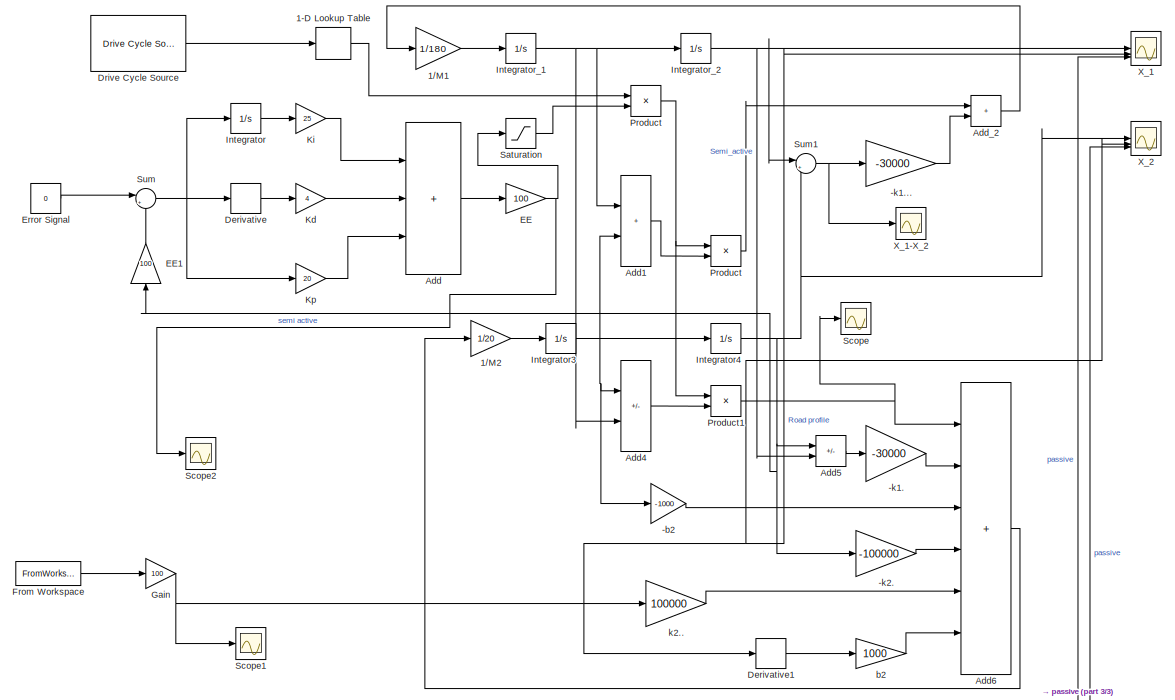
[diagram: root canvas - part 1/3, top center region]
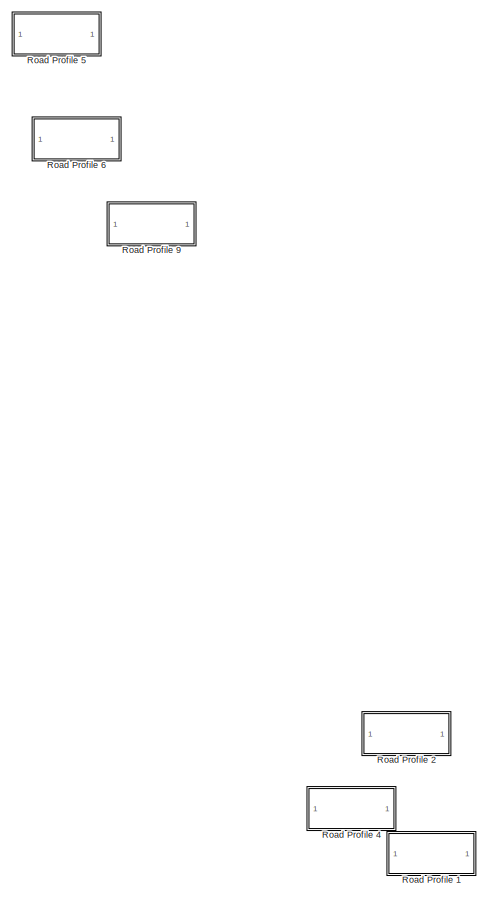
[diagram: root canvas - part 2/3, bottom left region]
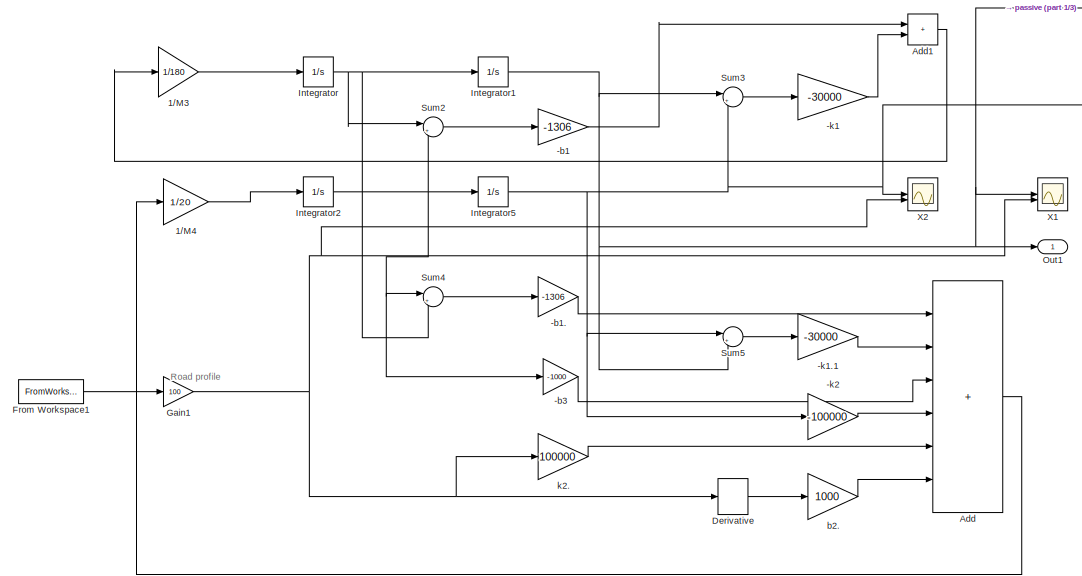
[diagram: root canvas - part 3/3, bottom center region]
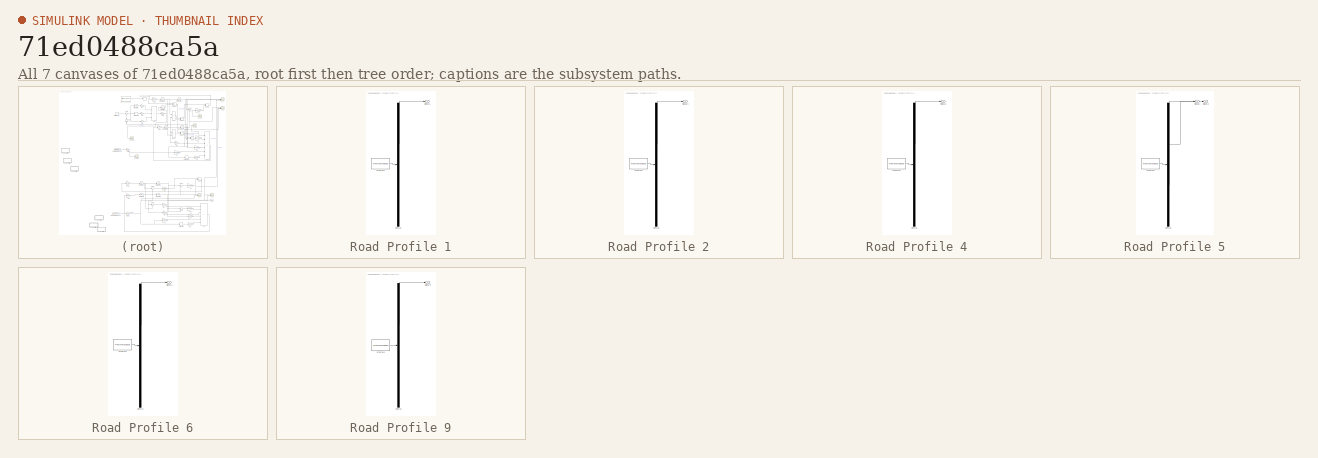
[diagram: thumbnail index - all 7 canvases of the model, root first then tree order]
MODEL slx_71ed0488ca5a
KIND model
CONFIG AbsTol = auto
CONFIG EnableMultiTasking = off
CONFIG FixedStep = auto
CONFIG MaxStep = auto
CONFIG MinStep = auto
CONFIG RelTol = 1e-3
CONFIG SampleTimeConstraint = Unconstrained
CONFIG SolverName = VariableStepAuto
CONFIG StartTime = 0
CONFIG StopTime = 1372
BLOCK [Gain] -b1
  Gain = -1306
BLOCK [Gain] -b1.
  Gain = -1306
BLOCK [Gain] -b2
  Gain = -1000
BLOCK [Gain] -b3
  Gain = -1000
BLOCK [Gain] -k1
  Gain = -30000
BLOCK [Gain] -k1.
  Gain = -30000
BLOCK [Gain] -k1...
  Gain = -30000
BLOCK [Gain] -k1.1
  Gain = -30000
BLOCK [Gain] -k2
  Gain = -100000
BLOCK [Gain] -k2.
  Gain = -100000
BLOCK [Lookup_n-D] 1-D Lookup Table
  BreakpointsForDimension1 = [0 5.5 11.2 16.6 22.2]
  InputPortMap = u0
  InternalRulePriority = Speed
  NumberOfTableDimensions = 1
  RndMeth = Simplest
  Table = [900 1100 1306 1550 1700]
BLOCK [Gain] 1//M1
  Gain = 1/180
BLOCK [Gain] 1//M2
  Gain = 1/20
BLOCK [Gain] 1//M3
  Gain = 1/180
BLOCK [Gain] 1//M4
  Gain = 1/20
BLOCK [Sum] Add
  IconShape = rectangular
  Inputs = ++++++
BLOCK [Sum] Add 
  IconShape = rectangular
  Inputs = +++
BLOCK [Sum] Add1
  IconShape = rectangular
BLOCK [Sum] Add1 
  IconShape = rectangular
BLOCK [Sum] Add4 
  IconShape = rectangular
  Inputs = +-
BLOCK [Sum] Add5
  IconShape = rectangular
  Inputs = +-
BLOCK [Sum] Add6
  IconShape = rectangular
  Inputs = ++++++
BLOCK [Sum] Add_2
  IconShape = rectangular
BLOCK [Derivative] Derivative
BLOCK [Derivative] Derivative 
BLOCK [Derivative] Derivative1
BLOCK [Reference] Drive Cycle Source  REF=autolibshared/Drive Cycle Source
  AttributesFormatString = %<cycleVar> (%<tfinal>)
  LibrarySourceBlock = autolibscenario/Drive Cycle Source
  SourceBlock = autolibshared/Drive Cycle Source
  SourceType = Drive Cycle Source
BLOCK [Gain] EE
  Gain = 100
BLOCK [Gain] EE1
  Gain = 100
  NameLocation = right
BLOCK [Constant] Error Signal
  Value = 0
BLOCK [FromWorkspace] From Workspace
  SampleTime = 0.1
  VariableName = road_profile
BLOCK [FromWorkspace] From Workspace1
  SampleTime = 0.1
  VariableName = road_profile
BLOCK [Gain] Gain
  Gain = 100
BLOCK [Gain] Gain1
  Gain = 100
BLOCK [Integrator] Integrator
BLOCK [Integrator] Integrator 
BLOCK [Integrator] Integrator1
BLOCK [Integrator] Integrator2
BLOCK [Integrator] Integrator3
BLOCK [Integrator] Integrator4
BLOCK [Integrator] Integrator5
BLOCK [Integrator] Integrator_1 
BLOCK [Integrator] Integrator_2 
BLOCK [Gain] Kd
  Gain = 4
BLOCK [Gain] Ki
  Gain = 25
BLOCK [Gain] Kp
  Gain = 20
BLOCK [Outport] Out1
  VectorParamsAs1DForOutWhenUnconnected = off
BLOCK [Product] Product
BLOCK [Product] Product 
BLOCK [Product] Product1
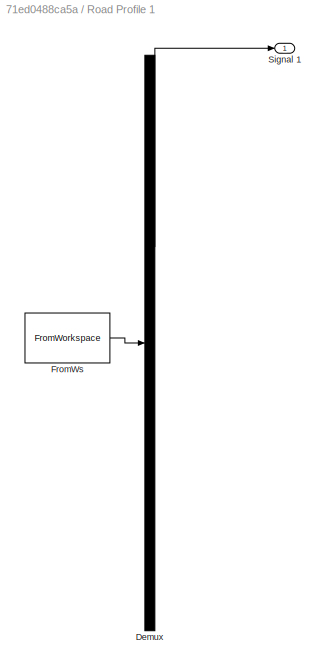
BLOCK [SubSystem] Road Profile 1
  ClipboardFcn = sigbuilder_block('clipboard');
  CloseFcn = sigbuilder_block('close');
  Commented = on
  ContinueFcn = sigbuilder_block('continue');
  CopyFcn = sigbuilder_block('copy');
  DeleteFcn = sigbuilder_block('delete');
  LoadFcn = sigbuilder_block('load');
  MaskHideContents = on
  ModelCloseFcn = sigbuilder_block('modelClose');
  NameChangeFcn = sigbuilder_block('namechange');
  OpenFcn = sigbuilder_block('open',[6 0 1012.5 477.75 ]);
  PauseFcn = sigbuilder_block('pause');
  PreSaveFcn = sigbuilder_block('preSave');
  StartFcn = sigbuilder_block('start');
  StopFcn = sigbuilder_block('stop');
  Tag = STV Subsys
BLOCK [Demux] Road Profile 1/Demux
  DisplayOption = none
  Outputs = 1
  Tag = STV Demux
BLOCK [FromWorkspace] Road Profile 1/FromWs
  Tag = STV FromWs
  VariableName = tuvar
BLOCK [Outport] Road Profile 1/Signal 1
  Tag = STV Outport
  VectorParamsAs1DForOutWhenUnconnected = off
BLOCK [SubSystem] Road Profile 2
  ClipboardFcn = sigbuilder_block('clipboard');
  CloseFcn = sigbuilder_block('close');
  Commented = on
  ContinueFcn = sigbuilder_block('continue');
  CopyFcn = sigbuilder_block('copy');
  DeleteFcn = sigbuilder_block('delete');
  LoadFcn = sigbuilder_block('load');
  MaskHideContents = on
  ModelCloseFcn = sigbuilder_block('modelClose');
  NameChangeFcn = sigbuilder_block('namechange');
  OpenFcn = sigbuilder_block('open',[141 130.2 550.5 359.55 ]);
  PauseFcn = sigbuilder_block('pause');
  PreSaveFcn = sigbuilder_block('preSave');
  StartFcn = sigbuilder_block('start');
  StopFcn = sigbuilder_block('stop');
  Tag = STV Subsys
BLOCK [Demux] Road Profile 2/Demux
  DisplayOption = none
  Outputs = 1
  Tag = STV Demux
BLOCK [FromWorkspace] Road Profile 2/FromWs
  Tag = STV FromWs
  VariableName = tuvar
BLOCK [Outport] Road Profile 2/Signal 3
  Tag = STV Outport
  VectorParamsAs1DForOutWhenUnconnected = off
BLOCK [SubSystem] Road Profile 4
  ClipboardFcn = sigbuilder_block('clipboard');
  CloseFcn = sigbuilder_block('close');
  Commented = on
  ContinueFcn = sigbuilder_block('continue');
  CopyFcn = sigbuilder_block('copy');
  DeleteFcn = sigbuilder_block('delete');
  LoadFcn = sigbuilder_block('load');
  MaskHideContents = on
  ModelCloseFcn = sigbuilder_block('modelClose');
  NameChangeFcn = sigbuilder_block('namechange');
  OpenFcn = sigbuilder_block('open',[6 0 1012.5 477.75 ]);
  PauseFcn = sigbuilder_block('pause');
  PreSaveFcn = sigbuilder_block('preSave');
  StartFcn = sigbuilder_block('start');
  StopFcn = sigbuilder_block('stop');
  Tag = STV Subsys
BLOCK [Demux] Road Profile 4/Demux
  DisplayOption = none
  Outputs = 1
  Tag = STV Demux
BLOCK [FromWorkspace] Road Profile 4/FromWs
  Tag = STV FromWs
  VariableName = tuvar
BLOCK [Outport] Road Profile 4/Signal 1
  Tag = STV Outport
  VectorParamsAs1DForOutWhenUnconnected = off
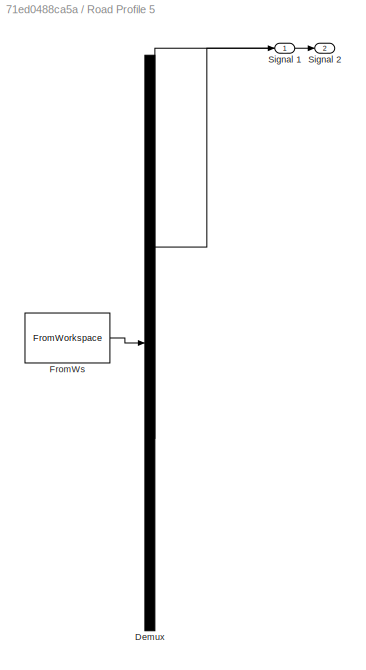
BLOCK [SubSystem] Road Profile 5
  ClipboardFcn = sigbuilder_block('clipboard');
  CloseFcn = sigbuilder_block('close');
  Commented = on
  ContinueFcn = sigbuilder_block('continue');
  CopyFcn = sigbuilder_block('copy');
  DeleteFcn = sigbuilder_block('delete');
  LoadFcn = sigbuilder_block('load');
  MaskHideContents = on
  ModelCloseFcn = sigbuilder_block('modelClose');
  NameChangeFcn = sigbuilder_block('namechange');
  OpenFcn = sigbuilder_block('open',[5.4 36 1141.2 516.6 ]);
  PauseFcn = sigbuilder_block('pause');
  PreSaveFcn = sigbuilder_block('preSave');
  StartFcn = sigbuilder_block('start');
  StopFcn = sigbuilder_block('stop');
  Tag = STV Subsys
BLOCK [Demux] Road Profile 5/Demux
  DisplayOption = none
  Outputs = 2
  Tag = STV Demux
BLOCK [FromWorkspace] Road Profile 5/FromWs
  Tag = STV FromWs
  VariableName = tuvar
BLOCK [Outport] Road Profile 5/Signal 1
  Tag = STV Outport
  VectorParamsAs1DForOutWhenUnconnected = off
BLOCK [Outport] Road Profile 5/Signal 2
  Port = 2
  Tag = STV Outport
BLOCK [SubSystem] Road Profile 6
  ClipboardFcn = sigbuilder_block('clipboard');
  CloseFcn = sigbuilder_block('close');
  Commented = on
  ContinueFcn = sigbuilder_block('continue');
  CopyFcn = sigbuilder_block('copy');
  DeleteFcn = sigbuilder_block('delete');
  LoadFcn = sigbuilder_block('load');
  MaskHideContents = on
  ModelCloseFcn = sigbuilder_block('modelClose');
  NameChangeFcn = sigbuilder_block('namechange');
  OpenFcn = sigbuilder_block('open',[6 0 1012.5 477.75 ]);
  PauseFcn = sigbuilder_block('pause');
  PreSaveFcn = sigbuilder_block('preSave');
  StartFcn = sigbuilder_block('start');
  StopFcn = sigbuilder_block('stop');
  Tag = STV Subsys
BLOCK [Demux] Road Profile 6/Demux
  DisplayOption = none
  Outputs = 1
  Tag = STV Demux
BLOCK [FromWorkspace] Road Profile 6/FromWs
  Tag = STV FromWs
  VariableName = tuvar
BLOCK [Outport] Road Profile 6/Signal 1
  Tag = STV Outport
  VectorParamsAs1DForOutWhenUnconnected = off
BLOCK [SubSystem] Road Profile 9
  ClipboardFcn = sigbuilder_block('clipboard');
  CloseFcn = sigbuilder_block('close');
  Commented = on
  ContinueFcn = sigbuilder_block('continue');
  CopyFcn = sigbuilder_block('copy');
  DeleteFcn = sigbuilder_block('delete');
  LoadFcn = sigbuilder_block('load');
  MaskHideContents = on
  ModelCloseFcn = sigbuilder_block('modelClose');
  NameChangeFcn = sigbuilder_block('namechange');
  OpenFcn = sigbuilder_block('open',[141 130.2 550.5 359.55 ]);
  PauseFcn = sigbuilder_block('pause');
  PreSaveFcn = sigbuilder_block('preSave');
  StartFcn = sigbuilder_block('start');
  StopFcn = sigbuilder_block('stop');
  Tag = STV Subsys
BLOCK [Demux] Road Profile 9/Demux
  DisplayOption = none
  Outputs = 1
  Tag = STV Demux
BLOCK [FromWorkspace] Road Profile 9/FromWs
  Tag = STV FromWs
  VariableName = tuvar
BLOCK [Outport] Road Profile 9/Signal 3
  Tag = STV Outport
  VectorParamsAs1DForOutWhenUnconnected = off
BLOCK [Saturate] Saturation
  LowerLimit = -1
  UpperLimit = 1
BLOCK [Scope] Scope
  Floating = off
  NumInputPorts = 1
  ScopeSpecificationString = Simulink.scopes.TimeScopeBlockCfg('CurrentConfiguration', extmgr.ConfigurationSet(extmgr.Configuration('Core','General UI',true),extmgr.Configuration('Core','Source UI',true),extmgr.Configuration('Sources','WiredSimulink',true,'DataLoggingVariableName','ScopeData1'),extmgr.Configuration('Visuals','Time Domain',true,'SerializedDisplays',{struct('MinYLimReal','-2845.61237','MaxYLimReal','949.44818',...<+1476ch>
BLOCK [Scope] Scope1
  Floating = off
  NumInputPorts = 1
  ScopeSpecificationString = Simulink.scopes.TimeScopeBlockCfg('CurrentConfiguration', extmgr.ConfigurationSet(extmgr.Configuration('Core','General UI',true),extmgr.Configuration('Core','Source UI',true),extmgr.Configuration('Sources','WiredSimulink',true,'DataLoggingVariableName','ScopeData1'),extmgr.Configuration('Visuals','Time Domain',true,'SerializedDisplays',{struct('MinYLimReal','4.18009','MaxYLimReal','4.49495','YLabe...<+1502ch>
BLOCK [Scope] Scope2
  Floating = off
  NumInputPorts = 1
  ScopeSpecificationString = Simulink.scopes.TimeScopeBlockCfg('CurrentConfiguration', extmgr.ConfigurationSet(extmgr.Configuration('Core','General UI',true),extmgr.Configuration('Core','Source UI',true),extmgr.Configuration('Sources','WiredSimulink',true,'DataLoggingVariableName','ScopeData1'),extmgr.Configuration('Visuals','Time Domain',true,'SerializedDisplays',{struct('MinYLimReal','-59979971.95368','MaxYLimReal','6749996...<+1531ch>
BLOCK [Sum] Sum
  Inputs = |+-
BLOCK [Sum] Sum1
  Inputs = |+-
BLOCK [Sum] Sum2
  Inputs = |+-
BLOCK [Sum] Sum3
  Inputs = |+-
BLOCK [Sum] Sum4
  Inputs = |+-
BLOCK [Sum] Sum5
  Inputs = |+-
BLOCK [Scope] X1
  Floating = off
  NumInputPorts = 2
  ScopeSpecificationString = Simulink.scopes.TimeScopeBlockCfg('CurrentConfiguration', extmgr.ConfigurationSet(extmgr.Configuration('Core','General UI',true),extmgr.Configuration('Core','Source UI',true),extmgr.Configuration('Sources','WiredSimulink',true,'DataLoggingVariableName','ScopeData1'),extmgr.Configuration('Visuals','Time Domain',true,'SerializedDisplays',{struct('MinYLimReal','4.61987','MaxYLimReal','4.86903','YLabe...<+1478ch>
BLOCK [Scope] X2
  Floating = off
  NumInputPorts = 2
  ScopeSpecificationString = Simulink.scopes.TimeScopeBlockCfg('CurrentConfiguration', extmgr.ConfigurationSet(extmgr.Configuration('Core','General UI',true),extmgr.Configuration('Core','Source UI',true),extmgr.Configuration('Sources','WiredSimulink',true,'DataLoggingVariableName','ScopeData2'),extmgr.Configuration('Visuals','Time Domain',true,'SerializedDisplays',{struct('MinYLimReal','2.9652','MaxYLimReal','3.25592','YLabel...<+1480ch>
BLOCK [Scope] X_1
  Floating = off
  NumInputPorts = 3
  ScopeSpecificationString = Simulink.scopes.TimeScopeBlockCfg('CurrentConfiguration', extmgr.ConfigurationSet(extmgr.Configuration('Core','General UI',true),extmgr.Configuration('Core','Source UI',true),extmgr.Configuration('Sources','WiredSimulink',true),extmgr.Configuration('Visuals','Time Domain',true,'SerializedDisplays',{struct('MinYLimReal','-1.35167','MaxYLimReal','8.63781','YLabelReal','','MinYLimMag','0.00000','MaxY...<+1584ch>
BLOCK [Scope] X_1-X_2
  Floating = off
  NumInputPorts = 1
  ScopeSpecificationString = Simulink.scopes.TimeScopeBlockCfg('CurrentConfiguration', extmgr.ConfigurationSet(extmgr.Configuration('Core','General UI',true),extmgr.Configuration('Core','Source UI',true),extmgr.Configuration('Sources','WiredSimulink',true,'DataLoggingVariableName','ScopeData1'),extmgr.Configuration('Visuals','Time Domain',true,'SerializedDisplays',{struct('MinYLimReal','-0.10141','MaxYLimReal','0.04055','YLab...<+1452ch>
BLOCK [Scope] X_2
  Floating = off
  NumInputPorts = 3
  ScopeSpecificationString = Simulink.scopes.TimeScopeBlockCfg('CurrentConfiguration', extmgr.ConfigurationSet(extmgr.Configuration('Core','General UI',true),extmgr.Configuration('Core','Source UI',true),extmgr.Configuration('Sources','WiredSimulink',true,'DataLoggingVariableName','ScopeData2'),extmgr.Configuration('Visuals','Time Domain',true,'SerializedDisplays',{struct('MinYLimReal','-1.05704','MaxYLimReal','8.58723','YLab...<+1555ch>
BLOCK [Gain] b2
  Gain = 1000
BLOCK [Gain] b2.
  Gain = 1000
BLOCK [Gain] k2.
  Gain = 100000
BLOCK [Gain] k2..
  Gain = 100000
ANNOTATION (root): Road profile
LINE -b1.:1 -> Add:1
LINE -b1:1 -> Add1:1
LINE -b2:1 -> Add6:3
LINE -b3:1 -> Add:3
LINE -k1...:1 -> Add_2:2
LINE -k1.1:1 -> Add:2
LINE -k1.:1 -> Add6:2
LINE -k1:1 -> Add1:2
LINE -k2.:1 -> Add6:4
LINE -k2:1 -> Add:4
LINE 1-D Lookup Table:1 -> Product:1
LINE 1//M1:1 -> Integrator_1 :1
LINE 1//M2:1 -> Integrator3:1
LINE 1//M3:1 -> Integrator:1
LINE 1//M4:1 -> Integrator2:1
LINE Add :1 -> EE:1
LINE Add1 :1 -> Product :2
LINE Add1:1 -> 1//M3:1
LINE Add4 :1 -> Product1:2
LINE Add5:1 -> -k1.:1
LINE Add6:1 -> 1//M2:1
LINE Add:1 -> 1//M4:1
LINE Add_2:1 -> 1//M1:1
LINE Derivative :1 -> Kd:1
LINE Derivative1:1 -> b2:1
LINE Derivative:1 -> b2.:1
LINE Drive Cycle Source:1 -> 1-D Lookup Table:1
LINE EE1:1 -> Sum:2
NET EE:1 -> Saturation:1, Scope2:1
LINE Error Signal:1 -> Sum:1
LINE From Workspace1:1 -> Gain1:1
LINE From Workspace:1 -> Gain:1
NET Gain1:1 -> Derivative:1, X1:2, X2:2, k2.:1
NET Gain:1 -> Derivative1:1, Scope1:1, X_1:2, X_2:2, k2..:1
LINE Integrator :1 -> Ki:1
NET Integrator1:1 -> Out1:1, Sum3:1, Sum5:2, X1:1, X_1:3
NET Integrator2:1 -> -b3:1, Integrator5:1, Sum2:2, Sum4:1
NET Integrator3:1 -> -b2:1, Add1 :2, Add4 :1, Integrator4:1
NET Integrator4:1 -> -k2.:1, Add5:1, EE1:1, Sum1:2, X_2:1
NET Integrator5:1 -> -k2:1, Sum3:2, Sum5:1, X2:1, X_2:3
NET Integrator:1 -> Integrator1:1, Sum2:1, Sum4:2
NET Integrator_1 :1 -> Add1 :1, Add4 :2, Integrator_2 :1
NET Integrator_2 :1 -> Add5:2, Sum1:1, X_1:1
LINE Kd:1 -> Add :2
LINE Ki:1 -> Add :1
LINE Kp:1 -> Add :3
LINE Product :1 -> Add_2:1
NET Product1:1 -> Add6:1, Scope:1
NET Product:1 -> Product :1, Product1:1
LINE Saturation:1 -> Product:2
NET Sum1:1 -> -k1...:1, X_1-X_2:1
LINE Sum2:1 -> -b1:1
LINE Sum3:1 -> -k1:1
LINE Sum4:1 -> -b1.:1
LINE Sum5:1 -> -k1.1:1
NET Sum:1 -> Derivative :1, Integrator :1, Kp:1
LINE b2.:1 -> Add:6
LINE b2:1 -> Add6:6
LINE k2..:1 -> Add6:5
LINE k2.:1 -> Add:5
note: NET lines group one-source signal fan-out (src -> all destinations, sorted); 1:1 wires keep LINE
